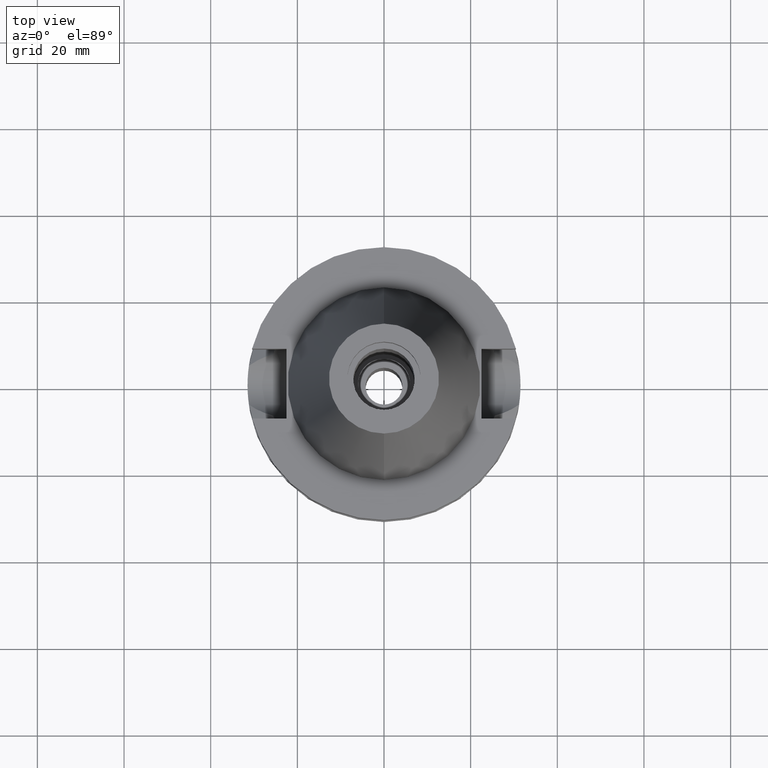
[diagram: clean part render]
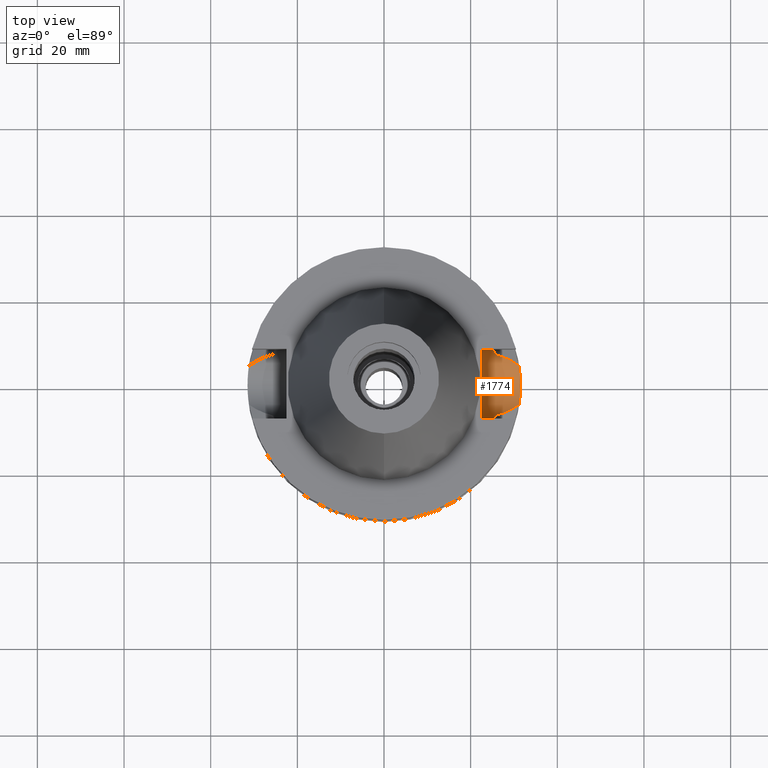
[diagram: same view with one face highlighted and labeled with its STEP entity id]
A machine part, top view. The second image highlights one B-rep face of the part: STEP entity #1774.
In plain terms, the highlighted cylindrical surface (edge-blend (fillet) strip) has radius 8.05 mm, axis along (1, 0, 0).
Its self-contained STEP definition (entity closure, byte-faithful):
#231=CARTESIAN_POINT('',(2.524772266958E1,-8.05E0,-1.495E1));
#232=CARTESIAN_POINT('',(2.524772266958E1,-8.05E0,-1.538836624581E1));
#233=CARTESIAN_POINT('',(2.527034454786E1,-7.979590381540E0,-1.625445348786E1));
#234=CARTESIAN_POINT('',(2.536984905223E1,-7.660468139848E0,-1.753893929126E1));
#235=CARTESIAN_POINT('',(2.547272591119E1,-7.310184643694E0,-1.835091906980E1));
#236=CARTESIAN_POINT('',(2.553175183775E1,-7.097862220093E0,-1.874774300139E1));
#314=CARTESIAN_POINT('',(2.25E1,0.E0,-1.495E1));
#315=DIRECTION('',(-1.E0,0.E0,0.E0));
#316=DIRECTION('',(0.E0,1.E0,0.E0));
#317=AXIS2_PLACEMENT_3D('',#314,#315,#316);
#322=CARTESIAN_POINT('',(2.25E1,0.E0,-1.495E1));
#323=DIRECTION('',(-1.E0,0.E0,0.E0));
#324=DIRECTION('',(0.E0,0.E0,-1.E0));
#325=AXIS2_PLACEMENT_3D('',#322,#323,#324);
#371=CARTESIAN_POINT('',(2.553175183775E1,7.097862220093E0,-1.874774300139E1));
#372=CARTESIAN_POINT('',(2.547271859263E1,7.310210969323E0,-1.835086986803E1));
#373=CARTESIAN_POINT('',(2.536983504485E1,7.660514361435E0,-1.753881631251E1));
#374=CARTESIAN_POINT('',(2.527033693534E1,7.979614138128E0,-1.625429252706E1));
#375=CARTESIAN_POINT('',(2.524772266958E1,8.05E0,-1.538829690304E1));
#376=CARTESIAN_POINT('',(2.524772266958E1,8.05E0,-1.495E1));
#513=CARTESIAN_POINT('',(3.117899877609E1,-4.485536235554E0,-2.163449434733E1));
#514=CARTESIAN_POINT('',(3.081797900709E1,-4.759430614822E0,-2.145070136329E1));
#515=CARTESIAN_POINT('',(3.002903592932E1,-5.291827797682E0,-2.104887060870E1));
#516=CARTESIAN_POINT('',(2.847899818372E1,-6.081700839486E0,-2.025784475317E1));
#517=CARTESIAN_POINT('',(2.704946726231E1,-6.642142245240E0,-1.952658839764E1));
#518=CARTESIAN_POINT('',(2.603826218341E1,-6.958631205477E0,-1.900796138851E1));
#519=CARTESIAN_POINT('',(2.553175183775E1,-7.097862220093E0,-1.874774300139E1));
#524=DIRECTION('',(-1.E0,-1.551559937893E-14,0.E0));
#525=VECTOR('',#524,2.747722669580E0);
#526=CARTESIAN_POINT('',(2.524772266958E1,-8.05E0,-1.495E1));
#527=LINE('',#526,#525);
#531=DIRECTION('',(1.E0,-1.551559937893E-14,0.E0));
#532=VECTOR('',#531,2.747722669580E0);
#533=CARTESIAN_POINT('',(2.25E1,8.05E0,-1.495E1));
#534=LINE('',#533,#532);
#538=CARTESIAN_POINT('',(3.117899877609E1,-4.485536235554E0,-2.163449434733E1));
#539=CARTESIAN_POINT('',(3.124369080524E1,-4.035861415951E0,-2.193624233196E1));
#540=CARTESIAN_POINT('',(3.135874964355E1,-3.100296799934E0,-2.243556869763E1));
#541=CARTESIAN_POINT('',(3.147361214504E1,-1.571010238598E0,-2.289773023091E1));
#542=CARTESIAN_POINT('',(3.15E1,-5.301810613964E-1,-2.3E1));
#543=CARTESIAN_POINT('',(3.15E1,0.E0,-2.3E1));
#548=CARTESIAN_POINT('',(3.15E1,0.E0,-2.3E1));
#549=CARTESIAN_POINT('',(3.15E1,5.302874392810E-1,-2.3E1));
#550=CARTESIAN_POINT('',(3.147360169555E1,1.571257160899E0,-2.289768897754E1));
#551=CARTESIAN_POINT('',(3.135872258253E1,3.100551592242E0,-2.243545751767E1));
#552=CARTESIAN_POINT('',(3.124367674355E1,4.035959158866E0,-2.193617674294E1));
#553=CARTESIAN_POINT('',(3.117899877609E1,4.485536235554E0,-2.163449434733E1));
#581=CARTESIAN_POINT('',(3.117899877609E1,4.485536235554E0,-2.163449434733E1));
#582=CARTESIAN_POINT('',(3.081608421070E1,4.760868137437E0,-2.144973673389E1));
#583=CARTESIAN_POINT('',(3.002413668236E1,5.294708616338E0,-2.104637244343E1));
#584=CARTESIAN_POINT('',(2.847558944528E1,6.083139860536E0,-2.025610446384E1));
#585=CARTESIAN_POINT('',(2.704656515217E1,6.643141648867E0,-1.952509312935E1));
#586=CARTESIAN_POINT('',(2.603716167882E1,6.958933715331E0,-1.900739600710E1));
#587=CARTESIAN_POINT('',(2.553175183775E1,7.097862220093E0,-1.874774300139E1));
#1300=VERTEX_POINT('',#548);
#1301=VERTEX_POINT('',#553);
#1302=VERTEX_POINT('',#538);
#1307=VERTEX_POINT('',#519);
#1308=VERTEX_POINT('',#231);
#1309=CARTESIAN_POINT('',(2.25E1,-8.05E0,-1.495E1));
#1310=VERTEX_POINT('',#1309);
#1311=CARTESIAN_POINT('',(2.25E1,0.E0,-2.3E1));
#1312=VERTEX_POINT('',#1311);
#1313=CARTESIAN_POINT('',(2.25E1,8.05E0,-1.495E1));
#1314=VERTEX_POINT('',#1313);
#1315=CARTESIAN_POINT('',(2.524772266958E1,8.05E0,-1.495E1));
#1316=VERTEX_POINT('',#1315);
#1317=VERTEX_POINT('',#371);
#1754=CARTESIAN_POINT('',(2.25E1,0.E0,-1.495E1));
#1755=DIRECTION('',(1.E0,0.E0,0.E0));
#1756=DIRECTION('',(0.E0,0.E0,-1.E0));
#1757=AXIS2_PLACEMENT_3D('',#1754,#1755,#1756);
#1758=CYLINDRICAL_SURFACE('',#1757,8.05E0);
#1760=ORIENTED_EDGE('',*,*,#1759,.F.);
#1762=ORIENTED_EDGE('',*,*,#1761,.F.);
#1763=ORIENTED_EDGE('',*,*,#1745,.T.);
#1764=ORIENTED_EDGE('',*,*,#1554,.F.);
#1765=ORIENTED_EDGE('',*,*,#1608,.T.);
#1766=ORIENTED_EDGE('',*,*,#1623,.F.);
#1767=ORIENTED_EDGE('',*,*,#1621,.F.);
#1768=ORIENTED_EDGE('',*,*,#1636,.T.);
#1769=ORIENTED_EDGE('',*,*,#1660,.F.);
#1771=ORIENTED_EDGE('',*,*,#1770,.F.);
#1772=EDGE_LOOP('',(#1760,#1762,#1763,#1764,#1765,#1766,#1767,#1768,#1769,
#1771));
#1773=FACE_OUTER_BOUND('',#1772,.F.);
#237=B_SPLINE_CURVE_WITH_KNOTS('',3,(#231,#232,#233,#234,#235,#236),
.UNSPECIFIED.,.F.,.F.,(4,1,1,4),(0.E0,3.333333333333E-1,6.666666666667E-1,1.E0),
.UNSPECIFIED.);
#318=CIRCLE('',#317,8.05E0);
#326=CIRCLE('',#325,8.05E0);
#377=B_SPLINE_CURVE_WITH_KNOTS('',3,(#371,#372,#373,#374,#375,#376),
.UNSPECIFIED.,.F.,.F.,(4,1,1,4),(0.E0,3.333333333333E-1,6.666666666667E-1,1.E0),
.UNSPECIFIED.);
#520=B_SPLINE_CURVE_WITH_KNOTS('',3,(#513,#514,#515,#516,#517,#518,#519),
.UNSPECIFIED.,.F.,.F.,(4,1,1,1,4),(0.E0,2.5E-1,5.E-1,7.5E-1,1.E0),
.UNSPECIFIED.);
#544=B_SPLINE_CURVE_WITH_KNOTS('',3,(#538,#539,#540,#541,#542,#543),
.UNSPECIFIED.,.F.,.F.,(4,1,1,4),(0.E0,3.333333333333E-1,6.666666666667E-1,1.E0),
.UNSPECIFIED.);
#554=B_SPLINE_CURVE_WITH_KNOTS('',3,(#548,#549,#550,#551,#552,#553),
.UNSPECIFIED.,.F.,.F.,(4,1,1,4),(0.E0,3.333333333333E-1,6.666666666667E-1,1.E0),
.UNSPECIFIED.);
#588=B_SPLINE_CURVE_WITH_KNOTS('',3,(#581,#582,#583,#584,#585,#586,#587),
.UNSPECIFIED.,.F.,.F.,(4,1,1,1,4),(0.E0,2.5E-1,5.E-1,7.5E-1,1.E0),
.UNSPECIFIED.);
#1554=EDGE_CURVE('',#1308,#1307,#237,.T.);
#1608=EDGE_CURVE('',#1308,#1310,#527,.T.);
#1621=EDGE_CURVE('',#1314,#1312,#318,.T.);
#1623=EDGE_CURVE('',#1312,#1310,#326,.T.);
#1636=EDGE_CURVE('',#1314,#1316,#534,.T.);
#1660=EDGE_CURVE('',#1317,#1316,#377,.T.);
#1745=EDGE_CURVE('',#1302,#1307,#520,.T.);
#1759=EDGE_CURVE('',#1300,#1301,#554,.T.);
#1761=EDGE_CURVE('',#1302,#1300,#544,.T.);
#1770=EDGE_CURVE('',#1301,#1317,#588,.T.);
#1774=ADVANCED_FACE('',(#1773),#1758,.F.);